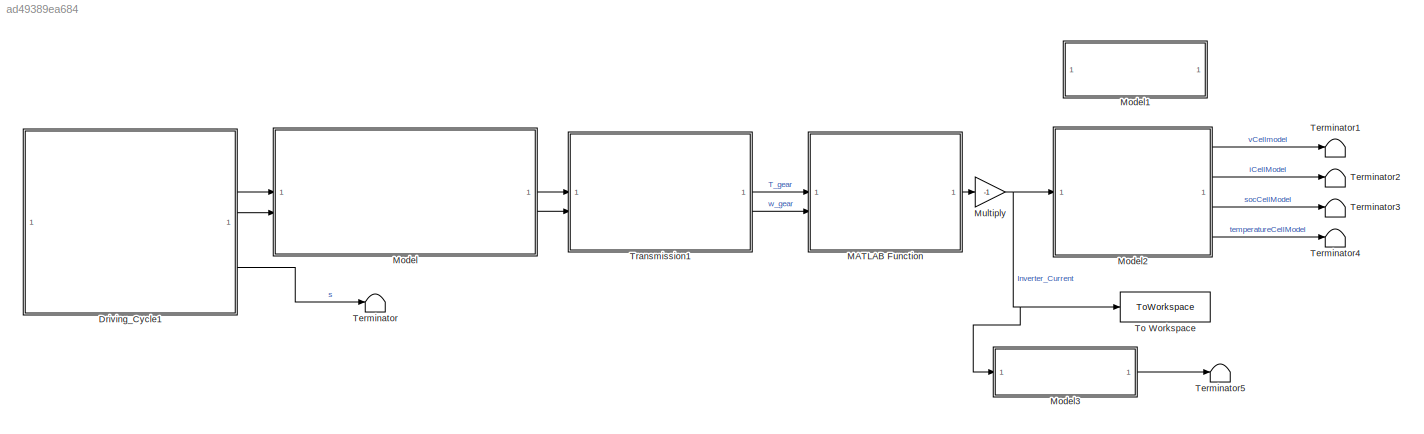
MODEL slx_ad49389ea684
KIND model
CONFIG AbsTol = auto
CONFIG EnableMultiTasking = on
CONFIG FixedStep = 0.001
CONFIG MaxStep = 0.1
CONFIG MinStep = auto
CONFIG RelTol = 1e-3
CONFIG SampleTimeConstraint = Unconstrained
CONFIG SolverName = ode45
CONFIG StartTime = 0.0
CONFIG StopTime = 1220
WORKSPACE source: mxarray member
WORKSPACE BTMSConfig: object (value not decoded)
WORKSPACE BatPara: object (value not decoded)
WORKSPACE SysPara: object (value not decoded)
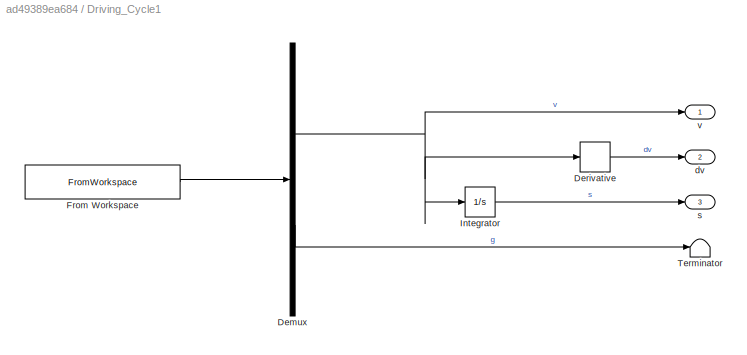
BLOCK [SubSystem] Driving_Cycle1
BLOCK [Demux] Driving_Cycle1/Demux
  Outputs = 2
BLOCK [Derivative] Driving_Cycle1/Derivative
BLOCK [FromWorkspace] Driving_Cycle1/From Workspace
  VariableName = [dc.time, dc.speed, dc.gear]
BLOCK [Integrator] Driving_Cycle1/Integrator
BLOCK [Terminator] Driving_Cycle1/Terminator
BLOCK [Outport] Driving_Cycle1/dv
  Port = 2
  VectorParamsAs1DForOutWhenUnconnected = off
BLOCK [Outport] Driving_Cycle1/s
  Port = 3
  VectorParamsAs1DForOutWhenUnconnected = off
BLOCK [Outport] Driving_Cycle1/v
  VectorParamsAs1DForOutWhenUnconnected = off
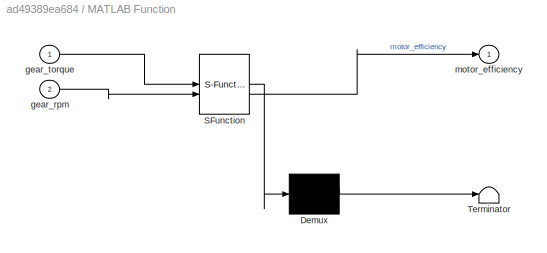
BLOCK [SubSystem] MATLAB Function
  ErrorFcn = Stateflow.Translate.translate
  LibrarySourceBlock = simulink/User-Defined\nFunctions/MATLAB Function
  PermitHierarchicalResolution = ExplicitOnly
  SFBlockType = MATLAB Function
  TreatAsAtomicUnit = on
BLOCK [Demux] MATLAB Function/ Demux 
  Outputs = 1
BLOCK [S-Function] MATLAB Function/ SFunction 
  EnableBusSupport = on
  FunctionName = sf_sfun
  Parameters = xC,yC,zC
  PortCounts = [2 2]
  SFcnIsStateOwnerBlock = off
  SFunctionDeploymentMode = off
  Tag = Stateflow S-Function 2
BLOCK [Terminator] MATLAB Function/ Terminator 
BLOCK [Inport] MATLAB Function/gear_rpm
  Port = 2
BLOCK [Inport] MATLAB Function/gear_torque
BLOCK [Outport] MATLAB Function/motor_efficiency
BLOCK [ModelReference] Model
  ModelNameDialog = vehicle_model.slx
  ModelReferenceVersion = 1.13
BLOCK [ModelReference] Model1
  Commented = on
  ModelNameDialog = GD_sim_BTMS.slx
  ModelReferenceVersion = 5.2
BLOCK [ModelReference] Model2
  Commented = on
  ModelNameDialog = testbench_4.slx
  ModelReferenceVersion = 1.17
BLOCK [ModelReference] Model3
  ModelNameDialog = sim_BTMS.slx
  ModelReferenceVersion = 5.1
BLOCK [Gain] Multiply
  Gain = -1
BLOCK [Terminator] Terminator
BLOCK [Terminator] Terminator1
  Commented = on
BLOCK [Terminator] Terminator2
  Commented = on
BLOCK [Terminator] Terminator3
  Commented = on
BLOCK [Terminator] Terminator4
  Commented = on
BLOCK [Terminator] Terminator5
BLOCK [ToWorkspace] To Workspace
  FixptAsFi = on
  MaxDataPoints = inf
  SampleTime = -1
  VariableName = sim_out
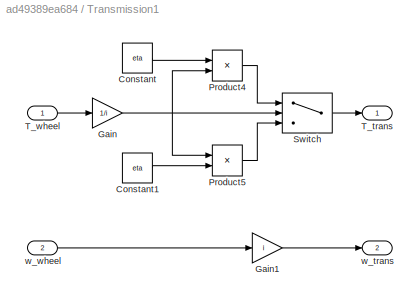
BLOCK [SubSystem] Transmission1
BLOCK [Constant] Transmission1/Constant
  Value = eta
BLOCK [Constant] Transmission1/Constant1
  Value = eta
BLOCK [Gain] Transmission1/Gain
  Gain = 1/i
BLOCK [Gain] Transmission1/Gain1
  Gain = i
BLOCK [Product] Transmission1/Product4
  Inputs = /*
  RndMeth = Zero
BLOCK [Product] Transmission1/Product5
  RndMeth = Zero
BLOCK [Switch] Transmission1/Switch
  InputSameDT = off
  SaturateOnIntegerOverflow = off
BLOCK [Outport] Transmission1/T_trans
  VectorParamsAs1DForOutWhenUnconnected = off
BLOCK [Inport] Transmission1/T_wheel
BLOCK [Outport] Transmission1/w_trans
  Port = 2
  VectorParamsAs1DForOutWhenUnconnected = off
BLOCK [Inport] Transmission1/w_wheel
  Port = 2
NET Driving_Cycle1/Demux:1 -> Driving_Cycle1/Derivative:1, Driving_Cycle1/Integrator:1, Driving_Cycle1/v:1
LINE Driving_Cycle1/Demux:2 -> Driving_Cycle1/Terminator:1
LINE Driving_Cycle1/Derivative:1 -> Driving_Cycle1/dv:1
LINE Driving_Cycle1/From Workspace:1 -> Driving_Cycle1/Demux:1
LINE Driving_Cycle1/Integrator:1 -> Driving_Cycle1/s:1
LINE Driving_Cycle1:1 -> Model:1
LINE Driving_Cycle1:2 -> Model:2
LINE Driving_Cycle1:3 -> Terminator:1
LINE MATLAB Function:1 -> Multiply:1
LINE Model2:1 -> Terminator1:1
LINE Model2:2 -> Terminator2:1
LINE Model2:3 -> Terminator3:1
LINE Model2:4 -> Terminator4:1
LINE Model3:1 -> Terminator5:1
LINE Model:1 -> Transmission1:1
LINE Model:2 -> Transmission1:2
NET Multiply:1 -> Model2:1, Model3:1, To Workspace:1
LINE Transmission1/Constant1:1 -> Transmission1/Product5:2
LINE Transmission1/Constant:1 -> Transmission1/Product4:1
LINE Transmission1/Gain1:1 -> Transmission1/w_trans:1
NET Transmission1/Gain:1 -> Transmission1/Product4:2, Transmission1/Product5:1, Transmission1/Switch:2
LINE Transmission1/Product4:1 -> Transmission1/Switch:1
LINE Transmission1/Product5:1 -> Transmission1/Switch:3
LINE Transmission1/Switch:1 -> Transmission1/T_trans:1
LINE Transmission1/T_wheel:1 -> Transmission1/Gain:1
LINE Transmission1/w_wheel:1 -> Transmission1/Gain1:1
LINE Transmission1:1 -> MATLAB Function:1
LINE Transmission1:2 -> MATLAB Function:2
note: NET lines group one-source signal fan-out (src -> all destinations, sorted); 1:1 wires keep LINE
CHART MATLAB Function states=1 transitions=1
  STATE_LABEL 'eML_blk_kernel()'
  STATE_LABEL 'SCRIPT:\nfunction motor_efficiency = fcn(gear_torque, gear_rpm, xC, yC, zC)\n    % this function calculates the efficency/current of the motor and electronics\n    % from an efficiency map including motor torque and speed.\n\n    diff_mat = zeros(1, size(xC, 2));\n    for idx = 1:size(xC, 2)\n        diff_mat(idx) = min(abs(xC{idx}-gear_rpm) + abs(yC{idx}-gear_torque));\n    end\n    [~, idx_min] = min(dif...<+105ch>'
CHART  states=0 transitions=0
